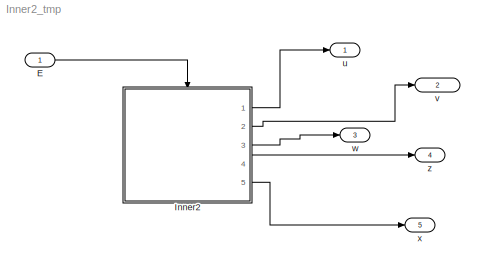
MODEL Inner2_tmp
KIND model
BLOCK [Inport] E
  IconDisplay = Port number
  SID = 14
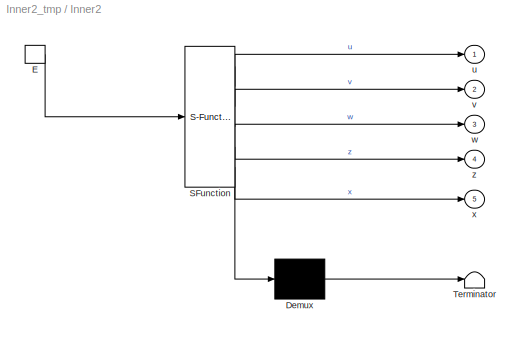
BLOCK [SubSystem] Inner2
  ErrorFcn = Stateflow.Translate.translate
  PermitHierarchicalResolution = ParametersOnly
  Ports = [0, 5, 0, 1]
  RequestExecContextInheritance = off
  SFBlockType = Chart
  SID = 1
  TreatAsAtomicUnit = on
  Variant = off
BLOCK [Demux] Inner2/ Demux 
  Outputs = 1
  Ports = [1, 1]
  SID = 1::18
BLOCK [S-Function] Inner2/ SFunction 
  EnableBusSupport = off
  FunctionName = sf_sfun
  PortCounts = [1 6]
  Ports = [1, 6]
  SFunctionDeploymentMode = off
  SID = 1::17
  Tag = Stateflow S-Function Inner2_tmp 1
BLOCK [Terminator] Inner2/ Terminator 
  SID = 1::19
BLOCK [TriggerPort] Inner2/E
  Ports = [0, 1]
  SID = 1::1
  ShowOutputPort = on
  TriggerType = either
BLOCK [Outport] Inner2/u
  IconDisplay = Port number
  SID = 1::5
BLOCK [Outport] Inner2/v
  IconDisplay = Port number
  Port = 2
  SID = 1::6
BLOCK [Outport] Inner2/w
  IconDisplay = Port number
  Port = 3
  SID = 1::7
BLOCK [Outport] Inner2/x
  IconDisplay = Port number
  Port = 5
  SID = 1::10
BLOCK [Outport] Inner2/z
  IconDisplay = Port number
  Port = 4
  SID = 1::8
BLOCK [Outport] u
  IconDisplay = Port number
  SID = 15
BLOCK [Outport] v
  IconDisplay = Port number
  Port = 2
  SID = 16
BLOCK [Outport] w
  IconDisplay = Port number
  Port = 3
  SID = 17
BLOCK [Outport] x
  IconDisplay = Port number
  Port = 5
  SID = 19
BLOCK [Outport] z
  IconDisplay = Port number
  Port = 4
  SID = 18
LINE E:1 -> Inner2:trigger
LINE Inner2/ Demux :1 -> Inner2/ Terminator :1
LINE Inner2/ SFunction :1 -> Inner2/ Demux :1
LINE Inner2/ SFunction :2 -> Inner2/u:1
LINE Inner2/ SFunction :3 -> Inner2/v:1
LINE Inner2/ SFunction :4 -> Inner2/w:1
LINE Inner2/ SFunction :5 -> Inner2/z:1
LINE Inner2/ SFunction :6 -> Inner2/x:1
LINE Inner2/E:1 -> Inner2/ SFunction :1
LINE Inner2:1 -> u:1
LINE Inner2:2 -> v:1
LINE Inner2:3 -> w:1
LINE Inner2:4 -> z:1
LINE Inner2:5 -> x:1
CHART Inner2 states=3 transitions=5
  STATE_LABEL 'A/\\nen: u+=10000;\\nex: u+=100;\\ndu: u+=1;'
  STATE_LABEL 'A1/\\nen: x+=10000;\\nex: x+=100;\\ndu: x+=1;'
  STATE_LABEL 'A2/\\nen: v+=10000;\\nex: v+=100;\\ndu: v+=1;'
